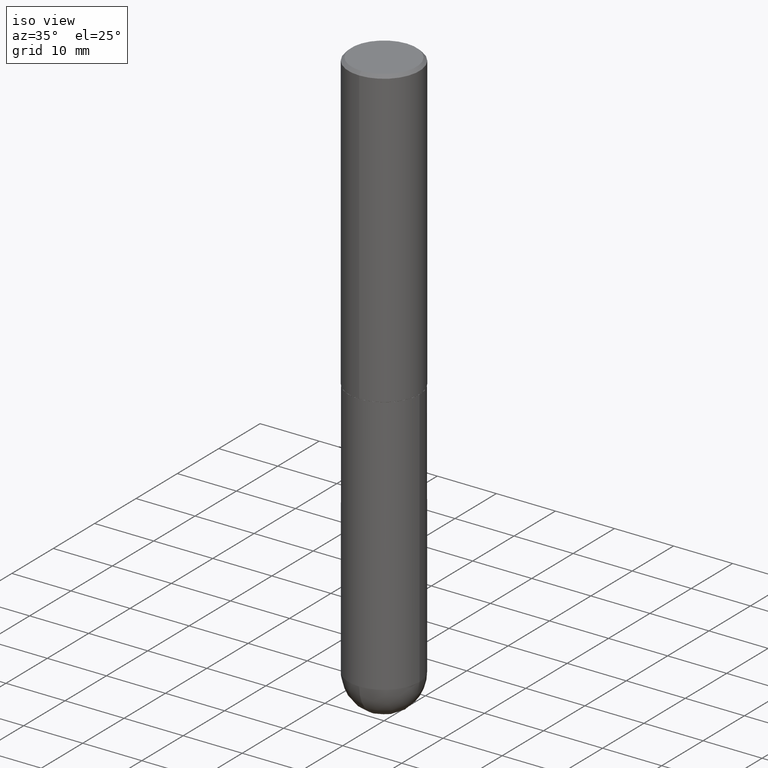
[diagram: clean part render]
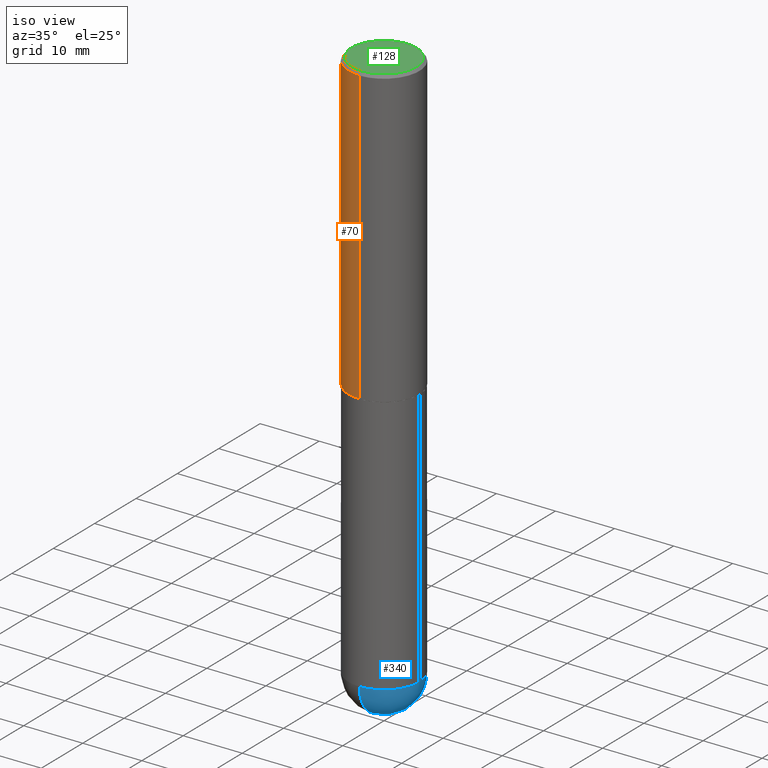
[diagram: same view with three faces highlighted in distinct colors, each labeled with its STEP entity id]
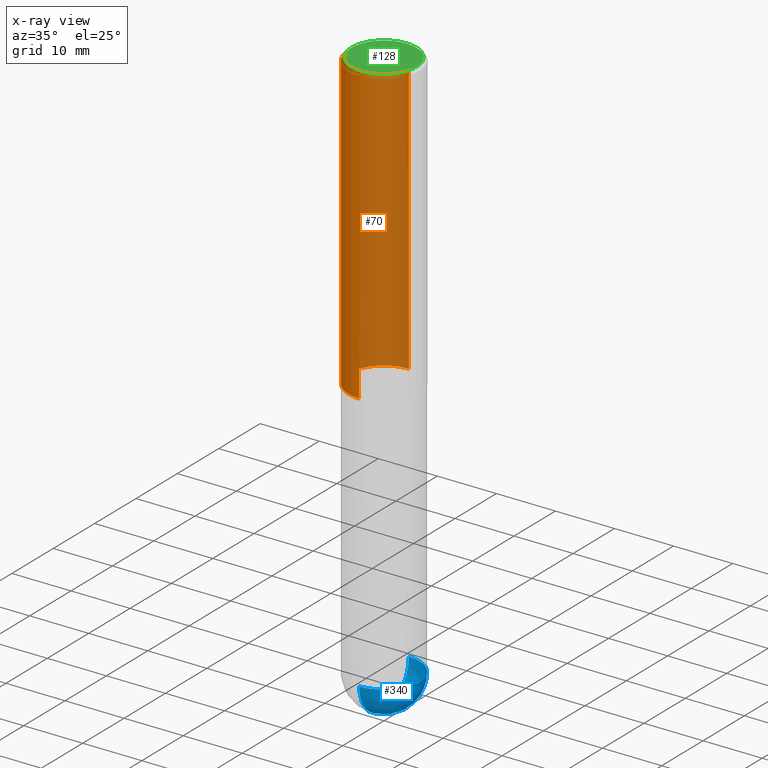
[diagram: x-ray of the same camera — body ghosted, the three highlighted faces saturated]
A machine part, iso view with three faces highlighted in distinct colors.
The next image is the same camera in x-ray (body ghosted, the three faces saturated) — at least one of them is partly hidden behind the body in this view.
Their STEP definitions:

[orange] entity #70 — the highlighted cylindrical surface (partial cylindrical patch) has radius 5.9995 mm, axis along (-0, 0, 1).
#4 = EDGE_CURVE ( 'NONE', #54, #133, #227, .T. ) ;
#5 = CARTESIAN_POINT ( 'NONE',  ( 1.678301941865381835E-15, 0.2361999999999933597, -1.967500000000001137 ) ) ;
#10 = EDGE_CURVE ( 'NONE', #305, #54, #308, .T. ) ;
#16 = VERTEX_POINT ( 'NONE', #126 ) ;
#24 = ORIENTED_EDGE ( 'NONE', *, *, #274, .F. ) ;
#28 = VECTOR ( 'NONE', #360, 39.37007874015748143 ) ;
#33 = CARTESIAN_POINT ( 'NONE',  ( -1.620449627073635079E-15, -0.2362000000000000766, -0.01999999999999922673 ) ) ;
#38 = DIRECTION ( 'NONE',  ( -2.444288450338274722E-29, 3.493171675597534541E-15, 1.000000000000000000 ) ) ;
#39 = EDGE_LOOP ( 'NONE', ( #217, #323, #88, #24 ) ) ;
#54 = VERTEX_POINT ( 'NONE', #251 ) ;
#68 = DIRECTION ( 'NONE',  ( -6.982962677686265922E-15, -1.000000000000000000, 3.487819265831411744E-15 ) ) ;
#69 = CIRCLE ( 'NONE', #140, 0.2361999999999999933 ) ;
#70 = ADVANCED_FACE ( 'NONE', ( #317 ), #209, .T. ) ;
#88 = ORIENTED_EDGE ( 'NONE', *, *, #4, .T. ) ;
#103 = CARTESIAN_POINT ( 'NONE',  ( -1.649375784469496722E-15, -0.2362000000000001043, 8.250871497761379229E-16 ) ) ;
#105 = CARTESIAN_POINT ( 'NONE',  ( 1.678301941865357183E-15, 0.2362000000000001043, -8.250871497761379229E-16 ) ) ;
#126 = CARTESIAN_POINT ( 'NONE',  ( 1.649375784469496525E-15, 0.2361999999999999378, -0.02000000000000087472 ) ) ;
#133 = VERTEX_POINT ( 'NONE', #33 ) ;
#140 = AXIS2_PLACEMENT_3D ( 'NONE', #349, #252, #68 ) ;
#167 = DIRECTION ( 'NONE',  ( -2.444288450338274442E-29, 3.493171675597534541E-15, 1.000000000000000000 ) ) ;
#185 = DIRECTION ( 'NONE',  ( -2.444288450338274722E-29, 3.493171675597534541E-15, 1.000000000000000000 ) ) ;
#207 = DIRECTION ( 'NONE',  ( -6.982962677686265922E-15, -1.000000000000000000, 3.493171675597534146E-15 ) ) ;
#209 = CYLINDRICAL_SURFACE ( 'NONE', #231, 0.2362000000000001043 ) ;
#217 = ORIENTED_EDGE ( 'NONE', *, *, #389, .F. ) ;
#227 = LINE ( 'NONE', #103, #28 ) ;
#231 = AXIS2_PLACEMENT_3D ( 'NONE', #315, #38, #207 ) ;
#251 = CARTESIAN_POINT ( 'NONE',  ( -1.649375784469449391E-15, -0.2362000000000070710, -1.967499999999999361 ) ) ;
#252 = DIRECTION ( 'NONE',  ( -2.444288450338274722E-29, 3.493171675597534541E-15, 1.000000000000000000 ) ) ;
#274 = EDGE_CURVE ( 'NONE', #16, #133, #69, .T. ) ;
#279 = DIRECTION ( 'NONE',  ( -6.982962677686265133E-15, -1.000000000000000000, 3.469747663417773847E-15 ) ) ;
#292 = LINE ( 'NONE', #105, #372 ) ;
#305 = VERTEX_POINT ( 'NONE', #5 ) ;
#308 = CIRCLE ( 'NONE', #366, 0.2362000000000002153 ) ;
#315 = CARTESIAN_POINT ( 'NONE',  ( 0.000000000000000000, 0.000000000000000000, 0.000000000000000000 ) ) ;
#317 = FACE_OUTER_BOUND ( 'NONE', #39, .T. ) ;
#323 = ORIENTED_EDGE ( 'NONE', *, *, #10, .T. ) ;
#349 = CARTESIAN_POINT ( 'NONE',  ( 4.888576900676561635E-31, -6.986343351195086880E-17, -0.02000000000000005246 ) ) ;
#354 = CARTESIAN_POINT ( 'NONE',  ( 4.809137526040556277E-29, -6.872815271738149679E-15, -1.967500000000000249 ) ) ;
#360 = DIRECTION ( 'NONE',  ( -2.444288450338274442E-29, 3.493171675597534541E-15, 1.000000000000000000 ) ) ;
#366 = AXIS2_PLACEMENT_3D ( 'NONE', #354, #185, #279 ) ;
#372 = VECTOR ( 'NONE', #167, 39.37007874015748143 ) ;
#389 = EDGE_CURVE ( 'NONE', #305, #16, #292, .T. ) ;

[blue] entity #340 — the highlighted spherical surface has radius 5.9995 mm.
#9 = SPHERICAL_SURFACE ( 'NONE', #144, 0.2362000000000002709 ) ;
#14 = ORIENTED_EDGE ( 'NONE', *, *, #120, .F. ) ;
#36 = CARTESIAN_POINT ( 'NONE',  ( 9.050190957929953666E-29, -1.292127413879071357E-14, -3.700800000000000090 ) ) ;
#43 = EDGE_LOOP ( 'NONE', ( #171, #357, #14, #51 ) ) ;
#51 = ORIENTED_EDGE ( 'NONE', *, *, #78, .F. ) ;
#56 = VERTEX_POINT ( 'NONE', #347 ) ;
#74 = CARTESIAN_POINT ( 'NONE',  ( 8.719071180016067419E-29, -1.339545650693076387E-14, -3.700800000000000090 ) ) ;
#78 = EDGE_CURVE ( 'NONE', #270, #56, #364, .T. ) ;
#80 = CIRCLE ( 'NONE', #310, 0.2362000000000002709 ) ;
#89 = CARTESIAN_POINT ( 'NONE',  ( 1.649375784469585666E-15, 0.2361999999999869759, -3.700800000000000978 ) ) ;
#92 = AXIS2_PLACEMENT_3D ( 'NONE', #385, #188, #321 ) ;
#93 = DIRECTION ( 'NONE',  ( 1.000000000000000000, -6.982962677686265133E-15, 0.000000000000000000 ) ) ;
#102 = DIRECTION ( 'NONE',  ( -1.000000000000000000, 6.982962677686265922E-15, -4.883557194083112901E-29 ) ) ;
#120 = EDGE_CURVE ( 'NONE', #56, #284, #281, .T. ) ;
#123 = AXIS2_PLACEMENT_3D ( 'NONE', #352, #159, #93 ) ;
#144 = AXIS2_PLACEMENT_3D ( 'NONE', #197, #102, #261 ) ;
#157 = AXIS2_PLACEMENT_3D ( 'NONE', #36, #341, #384 ) ;
#159 = DIRECTION ( 'NONE',  ( -2.445468806185136597E-29, 3.491481338843145583E-15, 1.000000000000000000 ) ) ;
#166 = DIRECTION ( 'NONE',  ( -1.000000000000000000, 7.105427357601001070E-15, -4.926315508542082329E-29 ) ) ;
#171 = ORIENTED_EDGE ( 'NONE', *, *, #205, .F. ) ;
#188 = DIRECTION ( 'NONE',  ( 1.000000000000000000, -6.982962677686265922E-15, 4.883557194083112340E-29 ) ) ;
#197 = CARTESIAN_POINT ( 'NONE',  ( 8.719071180016067419E-29, -1.339545650693076387E-14, -3.700800000000000090 ) ) ;
#205 = EDGE_CURVE ( 'NONE', #330, #270, #80, .T. ) ;
#223 = CARTESIAN_POINT ( 'NONE',  ( -1.678301941865268633E-15, -0.2362000000000132882, -3.700799999999998757 ) ) ;
#224 = FACE_OUTER_BOUND ( 'NONE', #43, .T. ) ;
#261 = DIRECTION ( 'NONE',  ( 6.982962677686265922E-15, 1.000000000000000000, -4.626330217890364603E-15 ) ) ;
#264 = DIRECTION ( 'NONE',  ( -7.105427357601001070E-15, -1.000000000000000000, 0.000000000000000000 ) ) ;
#270 = VERTEX_POINT ( 'NONE', #223 ) ;
#278 = EDGE_CURVE ( 'NONE', #330, #284, #344, .T. ) ;
#281 = CIRCLE ( 'NONE', #123, 0.2361999999999999933 ) ;
#284 = VERTEX_POINT ( 'NONE', #89 ) ;
#310 = AXIS2_PLACEMENT_3D ( 'NONE', #74, #166, #264 ) ;
#321 = DIRECTION ( 'NONE',  ( 6.982962677686265922E-15, 1.000000000000000000, 0.000000000000000000 ) ) ;
#330 = VERTEX_POINT ( 'NONE', #387 ) ;
#340 = ADVANCED_FACE ( 'NONE', ( #224 ), #9, .T. ) ;
#341 = DIRECTION ( 'NONE',  ( -2.445468806185136597E-29, 3.491481338843145583E-15, 1.000000000000000000 ) ) ;
#344 = CIRCLE ( 'NONE', #92, 0.2362000000000002709 ) ;
#347 = CARTESIAN_POINT ( 'NONE',  ( 0.2361999999999999933, -1.154650336162122153E-14, -3.700800000000000090 ) ) ;
#352 = CARTESIAN_POINT ( 'NONE',  ( 9.050190957929953666E-29, -1.292127413879071357E-14, -3.700800000000000090 ) ) ;
#357 = ORIENTED_EDGE ( 'NONE', *, *, #278, .T. ) ;
#364 = CIRCLE ( 'NONE', #157, 0.2361999999999999933 ) ;
#384 = DIRECTION ( 'NONE',  ( 1.000000000000000000, -6.982962677686265133E-15, 0.000000000000000000 ) ) ;
#385 = CARTESIAN_POINT ( 'NONE',  ( 8.719071180016067419E-29, -1.339545650693076387E-14, -3.700800000000000090 ) ) ;
#387 = CARTESIAN_POINT ( 'NONE',  ( 9.306790425912204830E-29, -1.420568132046758614E-14, -3.937000000000000277 ) ) ;

[green] entity #128 — the highlighted planar face has unit normal (0, -0, -1).
#8 = PLANE ( 'NONE',  #355 ) ;
#11 = CIRCLE ( 'NONE', #218, 0.2161999999999998090 ) ;
#30 = CARTESIAN_POINT ( 'NONE',  ( -1.551844647095919353E-15, -0.2161999999999998090, 9.263296666745015027E-16 ) ) ;
#61 = DIRECTION ( 'NONE',  ( 6.982962677686265922E-15, 1.000000000000000000, -3.493171675597534541E-15 ) ) ;
#71 = FACE_OUTER_BOUND ( 'NONE', #150, .T. ) ;
#98 = CARTESIAN_POINT ( 'NONE',  ( 1.579546157692632833E-15, 0.2161999999999998090, -5.841177658538709538E-16 ) ) ;
#118 = DIRECTION ( 'NONE',  ( -2.444288450338274722E-29, 3.493171675597534541E-15, 1.000000000000000000 ) ) ;
#124 = DIRECTION ( 'NONE',  ( 2.444288450338274442E-29, -3.493171675597534541E-15, -1.000000000000000000 ) ) ;
#128 = ADVANCED_FACE ( 'NONE', ( #71 ), #8, .F. ) ;
#142 = EDGE_CURVE ( 'NONE', #290, #146, #210, .T. ) ;
#146 = VERTEX_POINT ( 'NONE', #30 ) ;
#150 = EDGE_LOOP ( 'NONE', ( #407, #275 ) ) ;
#180 = CARTESIAN_POINT ( 'NONE',  ( -4.182322983720872700E-45, 5.977024594995098565E-31, 1.711059504103153238E-16 ) ) ;
#210 = CIRCLE ( 'NONE', #307, 0.2161999999999998090 ) ;
#218 = AXIS2_PLACEMENT_3D ( 'NONE', #408, #118, #410 ) ;
#239 = EDGE_CURVE ( 'NONE', #146, #290, #11, .T. ) ;
#246 = CARTESIAN_POINT ( 'NONE',  ( 1.509716530915769337E-15, 0.2161999999999998090, -6.696707410590285664E-16 ) ) ;
#275 = ORIENTED_EDGE ( 'NONE', *, *, #239, .T. ) ;
#277 = DIRECTION ( 'NONE',  ( -2.444288450338274722E-29, 3.493171675597534541E-15, 1.000000000000000000 ) ) ;
#290 = VERTEX_POINT ( 'NONE', #98 ) ;
#307 = AXIS2_PLACEMENT_3D ( 'NONE', #180, #277, #412 ) ;
#355 = AXIS2_PLACEMENT_3D ( 'NONE', #246, #124, #61 ) ;
#407 = ORIENTED_EDGE ( 'NONE', *, *, #142, .T. ) ;
#408 = CARTESIAN_POINT ( 'NONE',  ( -4.182322983720872700E-45, 5.977024594995098565E-31, 1.711059504103153238E-16 ) ) ;
#410 = DIRECTION ( 'NONE',  ( -6.982962677686265922E-15, -1.000000000000000000, 3.493171675597534146E-15 ) ) ;
#412 = DIRECTION ( 'NONE',  ( -6.982962677686265922E-15, -1.000000000000000000, 3.493171675597534146E-15 ) ) ;